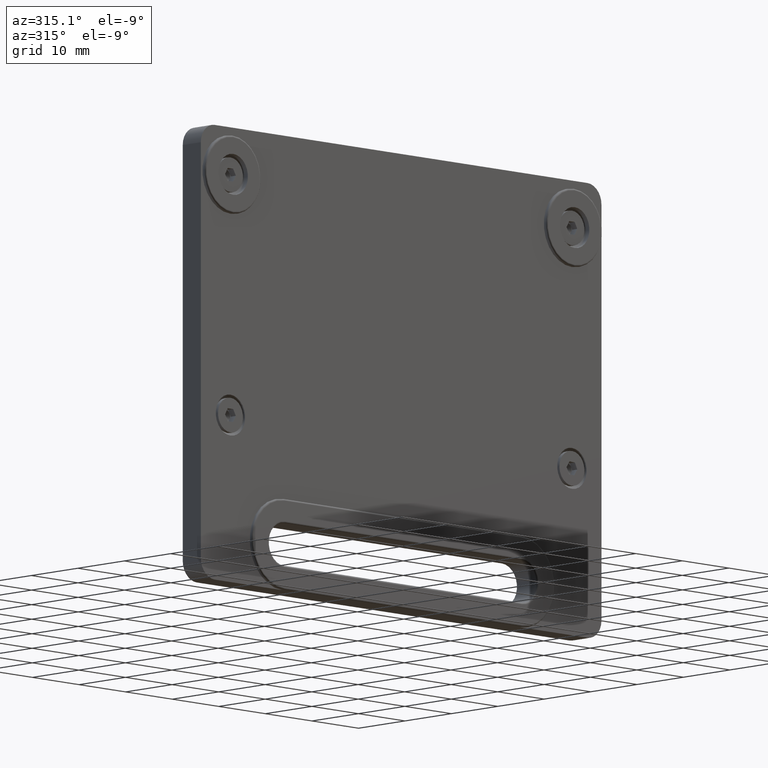
[diagram: clean part render]
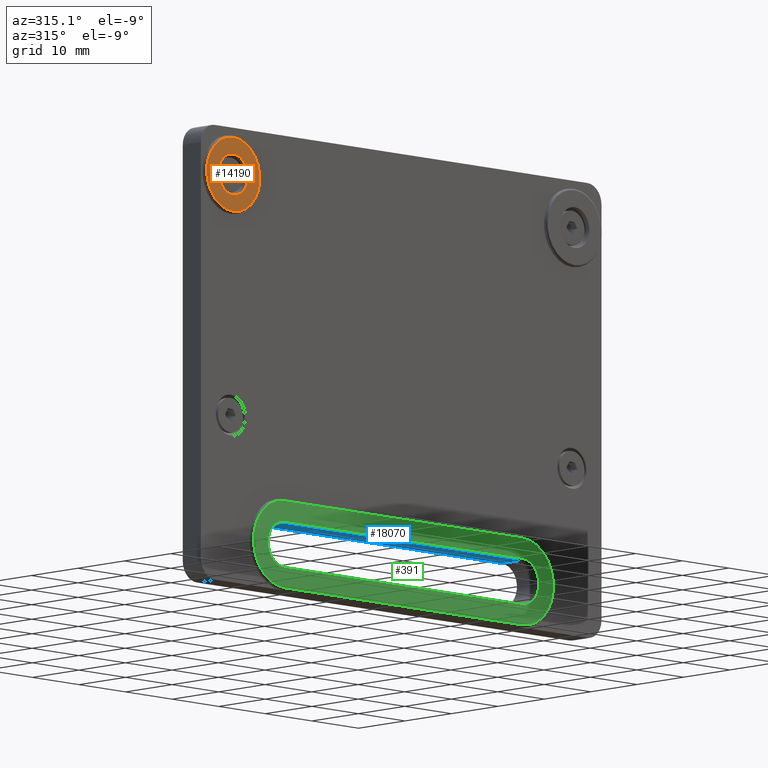
[diagram: same view with three faces highlighted in distinct colors, each labeled with its STEP entity id]
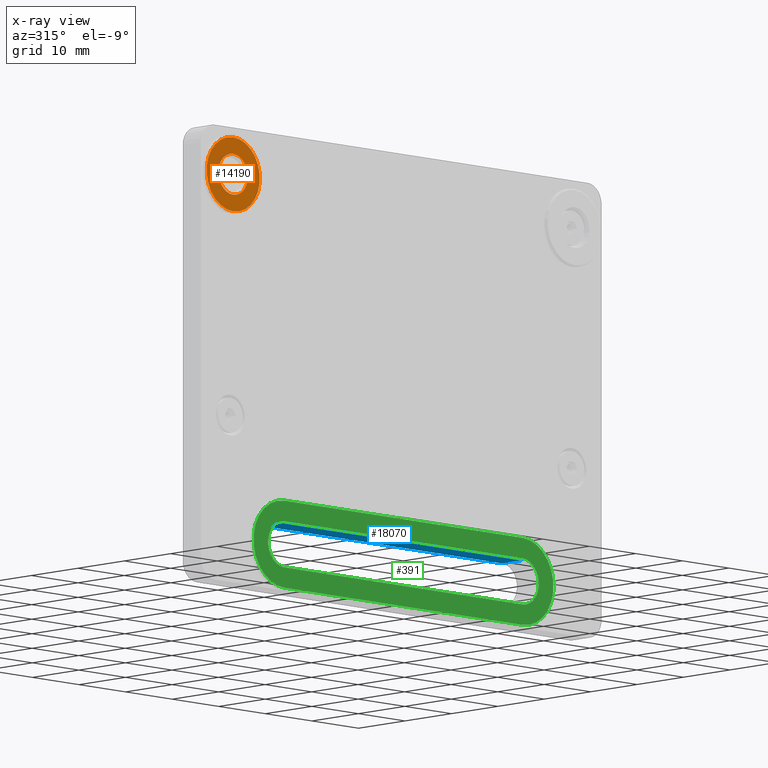
[diagram: x-ray of the same camera — body ghosted, the three highlighted faces saturated]
A machine part, auxiliary view with three faces highlighted in distinct colors.
The next image is the same camera in x-ray (body ghosted, the three faces saturated) — at least one of them is partly hidden behind the body in this view.
Their STEP definitions:

[orange] entity #14190 — the highlighted planar face has unit normal (0, -1, 0).
#2051 = DIRECTION ( 'NONE',  ( -0.000000000000000000, -1.000000000000000000, -0.000000000000000000 ) ) ;
#2268 = ORIENTED_EDGE ( 'NONE', *, *, #14571, .F. ) ;
#2435 = AXIS2_PLACEMENT_3D ( 'NONE', #12490, #12630, #22005 ) ;
#2796 = CARTESIAN_POINT ( 'NONE',  ( -36.65000000000000568, 0.000000000000000000, 18.50000000000000711 ) ) ;
#3853 = CARTESIAN_POINT ( 'NONE',  ( -36.65000000000000568, 0.000000000000000000, 12.80000000000000604 ) ) ;
#3902 = DIRECTION ( 'NONE',  ( -0.000000000000000000, -1.000000000000000000, 0.000000000000000000 ) ) ;
#5031 = EDGE_CURVE ( 'NONE', #13809, #22548, #5815, .T. ) ;
#5815 = CIRCLE ( 'NONE', #20348, 5.700000000000000178 ) ;
#7638 = DIRECTION ( 'NONE',  ( 0.000000000000000000, -1.000000000000000000, 0.000000000000000000 ) ) ;
#7943 = CIRCLE ( 'NONE', #2435, 3.149999999999999911 ) ;
#7984 = PLANE ( 'NONE',  #10405 ) ;
#8359 = ORIENTED_EDGE ( 'NONE', *, *, #9615, .F. ) ;
#9025 = ORIENTED_EDGE ( 'NONE', *, *, #5031, .T. ) ;
#9615 = EDGE_CURVE ( 'NONE', #14023, #17667, #12308, .T. ) ;
#10207 = CARTESIAN_POINT ( 'NONE',  ( -36.65000000000000568, 0.000000000000000000, 15.35000000000000675 ) ) ;
#10405 = AXIS2_PLACEMENT_3D ( 'NONE', #24207, #7638, #21601 ) ;
#12193 = FACE_BOUND ( 'NONE', #22550, .T. ) ;
#12308 = CIRCLE ( 'NONE', #30224, 3.149999999999999911 ) ;
#12490 = CARTESIAN_POINT ( 'NONE',  ( -36.65000000000000568, 0.000000000000000000, 18.50000000000000711 ) ) ;
#12630 = DIRECTION ( 'NONE',  ( -0.000000000000000000, -1.000000000000000000, -0.000000000000000000 ) ) ;
#13321 = CARTESIAN_POINT ( 'NONE',  ( -36.65000000000000568, 0.000000000000000000, 21.65000000000000568 ) ) ;
#13809 = VERTEX_POINT ( 'NONE', #27108 ) ;
#14023 = VERTEX_POINT ( 'NONE', #13321 ) ;
#14190 = ADVANCED_FACE ( 'NONE', ( #26547, #12193 ), #7984, .T. ) ;
#14571 = EDGE_CURVE ( 'NONE', #17667, #14023, #7943, .T. ) ;
#14867 = DIRECTION ( 'NONE',  ( -0.000000000000000000, -1.000000000000000000, 0.000000000000000000 ) ) ;
#17667 = VERTEX_POINT ( 'NONE', #10207 ) ;
#19609 = ORIENTED_EDGE ( 'NONE', *, *, #25107, .T. ) ;
#19650 = CIRCLE ( 'NONE', #30540, 5.700000000000000178 ) ;
#20066 = CARTESIAN_POINT ( 'NONE',  ( -36.65000000000000568, 0.000000000000000000, 18.50000000000000711 ) ) ;
#20348 = AXIS2_PLACEMENT_3D ( 'NONE', #2796, #14867, #28716 ) ;
#21601 = DIRECTION ( 'NONE',  ( 0.000000000000000000, -0.000000000000000000, -1.000000000000000000 ) ) ;
#22005 = DIRECTION ( 'NONE',  ( 0.000000000000000000, 0.000000000000000000, -1.000000000000000000 ) ) ;
#22548 = VERTEX_POINT ( 'NONE', #3853 ) ;
#22550 = EDGE_LOOP ( 'NONE', ( #2268, #8359 ) ) ;
#23473 = CARTESIAN_POINT ( 'NONE',  ( -36.65000000000000568, 0.000000000000000000, 18.50000000000000711 ) ) ;
#23629 = DIRECTION ( 'NONE',  ( 0.000000000000000000, 0.000000000000000000, -1.000000000000000000 ) ) ;
#24207 = CARTESIAN_POINT ( 'NONE',  ( -39.99999999999999289, 0.000000000000000000, -41.20000000000000284 ) ) ;
#24292 = EDGE_LOOP ( 'NONE', ( #19609, #9025 ) ) ;
#25107 = EDGE_CURVE ( 'NONE', #22548, #13809, #19650, .T. ) ;
#26547 = FACE_OUTER_BOUND ( 'NONE', #24292, .T. ) ;
#27108 = CARTESIAN_POINT ( 'NONE',  ( -36.65000000000000568, 0.000000000000000000, 24.20000000000000639 ) ) ;
#28716 = DIRECTION ( 'NONE',  ( 0.000000000000000000, 0.000000000000000000, -1.000000000000000000 ) ) ;
#29512 = DIRECTION ( 'NONE',  ( 0.000000000000000000, 0.000000000000000000, -1.000000000000000000 ) ) ;
#30224 = AXIS2_PLACEMENT_3D ( 'NONE', #23473, #2051, #23629 ) ;
#30540 = AXIS2_PLACEMENT_3D ( 'NONE', #20066, #3902, #29512 ) ;

[blue] entity #18070 — the highlighted planar face has unit normal (0, 0, -1).
#117 = VECTOR ( 'NONE', #14119, 1000.000000000000000 ) ;
#351 = CARTESIAN_POINT ( 'NONE',  ( -25.50000000000000000, 4.500000000000000000, -33.94999999999999574 ) ) ;
#2870 = CARTESIAN_POINT ( 'NONE',  ( -25.50000000000000000, 4.500000000000000000, -33.94999999999999574 ) ) ;
#3283 = FACE_OUTER_BOUND ( 'NONE', #9567, .T. ) ;
#3358 = ORIENTED_EDGE ( 'NONE', *, *, #23116, .F. ) ;
#3506 = CARTESIAN_POINT ( 'NONE',  ( -25.50000000000000000, 0.4000000000000001887, -33.94999999999999574 ) ) ;
#4936 = LINE ( 'NONE', #351, #29350 ) ;
#6461 = ORIENTED_EDGE ( 'NONE', *, *, #21090, .T. ) ;
#9567 = EDGE_LOOP ( 'NONE', ( #22229, #12333, #3358, #6461 ) ) ;
#10023 = PLANE ( 'NONE',  #26927 ) ;
#10255 = VERTEX_POINT ( 'NONE', #2870 ) ;
#10533 = VERTEX_POINT ( 'NONE', #23171 ) ;
#12333 = ORIENTED_EDGE ( 'NONE', *, *, #14963, .T. ) ;
#12553 = CARTESIAN_POINT ( 'NONE',  ( -25.50000000000000000, 4.500000000000000000, -33.94999999999999574 ) ) ;
#13053 = DIRECTION ( 'NONE',  ( -1.000000000000000000, 0.000000000000000000, 0.000000000000000000 ) ) ;
#14119 = DIRECTION ( 'NONE',  ( -0.000000000000000000, -1.000000000000000000, -0.000000000000000000 ) ) ;
#14963 = EDGE_CURVE ( 'NONE', #20399, #20459, #22430, .T. ) ;
#16104 = CARTESIAN_POINT ( 'NONE',  ( -25.50000000000000000, 0.4000000000000001887, -33.94999999999999574 ) ) ;
#17353 = DIRECTION ( 'NONE',  ( -0.000000000000000000, -1.000000000000000000, -0.000000000000000000 ) ) ;
#17427 = DIRECTION ( 'NONE',  ( -1.000000000000000000, 0.000000000000000000, -0.000000000000000000 ) ) ;
#18070 = ADVANCED_FACE ( 'NONE', ( #3283 ), #10023, .T. ) ;
#18975 = CARTESIAN_POINT ( 'NONE',  ( 25.50000000000000000, 4.500000000000000000, -33.94999999999998863 ) ) ;
#20221 = EDGE_CURVE ( 'NONE', #10533, #20399, #22300, .T. ) ;
#20399 = VERTEX_POINT ( 'NONE', #27744 ) ;
#20459 = VERTEX_POINT ( 'NONE', #16104 ) ;
#21090 = EDGE_CURVE ( 'NONE', #10255, #10533, #4936, .T. ) ;
#22229 = ORIENTED_EDGE ( 'NONE', *, *, #20221, .T. ) ;
#22300 = LINE ( 'NONE', #18975, #25303 ) ;
#22430 = LINE ( 'NONE', #3506, #29384 ) ;
#23116 = EDGE_CURVE ( 'NONE', #10255, #20459, #25964, .T. ) ;
#23171 = CARTESIAN_POINT ( 'NONE',  ( 25.50000000000000000, 4.500000000000000000, -33.94999999999998863 ) ) ;
#23499 = CARTESIAN_POINT ( 'NONE',  ( -25.50000000000000000, 4.500000000000000000, -33.94999999999999574 ) ) ;
#25303 = VECTOR ( 'NONE', #17353, 1000.000000000000000 ) ;
#25964 = LINE ( 'NONE', #23499, #117 ) ;
#26927 = AXIS2_PLACEMENT_3D ( 'NONE', #12553, #29048, #17427 ) ;
#27744 = CARTESIAN_POINT ( 'NONE',  ( 25.50000000000000000, 0.4000000000000001887, -33.94999999999998863 ) ) ;
#28945 = DIRECTION ( 'NONE',  ( 1.000000000000000000, 0.000000000000000000, 0.000000000000000000 ) ) ;
#29048 = DIRECTION ( 'NONE',  ( 0.000000000000000000, 0.000000000000000000, -1.000000000000000000 ) ) ;
#29350 = VECTOR ( 'NONE', #28945, 1000.000000000000000 ) ;
#29384 = VECTOR ( 'NONE', #13053, 1000.000000000000000 ) ;

[green] entity #391 — the highlighted planar face has unit normal (0, -1, 0).
#22 = EDGE_CURVE ( 'NONE', #3861, #8489, #21159, .T. ) ;
#255 = DIRECTION ( 'NONE',  ( 0.000000000000000000, -0.000000000000000000, -1.000000000000000000 ) ) ;
#391 = ADVANCED_FACE ( 'NONE', ( #12647, #24501 ), #7777, .T. ) ;
#757 = ORIENTED_EDGE ( 'NONE', *, *, #25205, .T. ) ;
#1848 = DIRECTION ( 'NONE',  ( 0.000000000000000000, -1.000000000000000000, 0.000000000000000000 ) ) ;
#3861 = VERTEX_POINT ( 'NONE', #27074 ) ;
#4084 = DIRECTION ( 'NONE',  ( 0.000000000000000000, 0.000000000000000000, -1.000000000000000000 ) ) ;
#4279 = VERTEX_POINT ( 'NONE', #10005 ) ;
#4833 = DIRECTION ( 'NONE',  ( 0.000000000000000000, 0.000000000000000000, -1.000000000000000000 ) ) ;
#4986 = DIRECTION ( 'NONE',  ( -1.000000000000000000, 0.000000000000000000, -2.040851148208008491E-16 ) ) ;
#5771 = CARTESIAN_POINT ( 'NONE',  ( 25.50000000000000000, 0.1000000000000000056, -33.64999999999998437 ) ) ;
#6456 = VECTOR ( 'NONE', #20200, 1000.000000000000000 ) ;
#6898 = EDGE_CURVE ( 'NONE', #4279, #16597, #13514, .T. ) ;
#7777 = PLANE ( 'NONE',  #14857 ) ;
#7779 = ORIENTED_EDGE ( 'NONE', *, *, #27527, .T. ) ;
#8489 = VERTEX_POINT ( 'NONE', #19209 ) ;
#8631 = DIRECTION ( 'NONE',  ( -0.000000000000000000, 1.000000000000000000, -0.000000000000000000 ) ) ;
#9319 = VERTEX_POINT ( 'NONE', #28449 ) ;
#9664 = VERTEX_POINT ( 'NONE', #24369 ) ;
#9674 = CARTESIAN_POINT ( 'NONE',  ( -25.50000000000000000, 0.1000000000000000056, -37.19999999999998863 ) ) ;
#10005 = CARTESIAN_POINT ( 'NONE',  ( -25.50000000000000000, 0.1000000000000000056, -40.74999999999997868 ) ) ;
#10132 = CARTESIAN_POINT ( 'NONE',  ( -25.50000000000000000, 0.09999999999999999167, -37.19999999999998153 ) ) ;
#10204 = CIRCLE ( 'NONE', #29643, 6.699999999999997513 ) ;
#10273 = DIRECTION ( 'NONE',  ( -0.000000000000000000, 1.000000000000000000, -0.000000000000000000 ) ) ;
#10433 = VERTEX_POINT ( 'NONE', #19020 ) ;
#10534 = CIRCLE ( 'NONE', #11046, 6.699999999999997513 ) ;
#10924 = LINE ( 'NONE', #23097, #26828 ) ;
#10973 = DIRECTION ( 'NONE',  ( 0.000000000000000000, 0.000000000000000000, -1.000000000000000000 ) ) ;
#11046 = AXIS2_PLACEMENT_3D ( 'NONE', #30752, #1848, #4833 ) ;
#11827 = ORIENTED_EDGE ( 'NONE', *, *, #14390, .T. ) ;
#12382 = CIRCLE ( 'NONE', #28293, 3.549999999999997602 ) ;
#12647 = FACE_BOUND ( 'NONE', #16989, .T. ) ;
#12815 = CARTESIAN_POINT ( 'NONE',  ( -25.50000000000000000, 0.1000000000000000056, -33.64999999999999147 ) ) ;
#13514 = CIRCLE ( 'NONE', #30955, 3.549999999999997602 ) ;
#14390 = EDGE_CURVE ( 'NONE', #16597, #16047, #15809, .T. ) ;
#14541 = LINE ( 'NONE', #23903, #27175 ) ;
#14857 = AXIS2_PLACEMENT_3D ( 'NONE', #9674, #19882, #255 ) ;
#15155 = DIRECTION ( 'NONE',  ( 0.000000000000000000, 0.000000000000000000, -1.000000000000000000 ) ) ;
#15809 = LINE ( 'NONE', #12815, #6456 ) ;
#15851 = DIRECTION ( 'NONE',  ( 0.000000000000000000, -1.000000000000000000, 0.000000000000000000 ) ) ;
#16047 = VERTEX_POINT ( 'NONE', #5771 ) ;
#16597 = VERTEX_POINT ( 'NONE', #28975 ) ;
#16989 = EDGE_LOOP ( 'NONE', ( #26603, #11827, #27740, #24040 ) ) ;
#18043 = CARTESIAN_POINT ( 'NONE',  ( -25.50000000000000000, 0.09999999999999999167, -37.19999999999998863 ) ) ;
#19020 = CARTESIAN_POINT ( 'NONE',  ( -25.50000000000000000, 0.1000000000000000056, -30.49999999999999289 ) ) ;
#19209 = CARTESIAN_POINT ( 'NONE',  ( 25.50000000000000000, 0.1000000000000000056, -43.89999999999999858 ) ) ;
#19882 = DIRECTION ( 'NONE',  ( 0.000000000000000000, -1.000000000000000000, 0.000000000000000000 ) ) ;
#20200 = DIRECTION ( 'NONE',  ( 1.000000000000000000, -0.000000000000000000, -0.000000000000000000 ) ) ;
#20489 = DIRECTION ( 'NONE',  ( -1.000000000000000000, -0.000000000000000000, -0.000000000000000000 ) ) ;
#20730 = EDGE_LOOP ( 'NONE', ( #757, #7779, #29352, #22814 ) ) ;
#21159 = LINE ( 'NONE', #30642, #24412 ) ;
#21529 = EDGE_CURVE ( 'NONE', #9319, #4279, #10924, .T. ) ;
#22814 = ORIENTED_EDGE ( 'NONE', *, *, #22, .T. ) ;
#23097 = CARTESIAN_POINT ( 'NONE',  ( -25.50000000000000000, 0.1000000000000000056, -40.74999999999998579 ) ) ;
#23903 = CARTESIAN_POINT ( 'NONE',  ( -25.50000000000000000, 0.09999999999999999167, -30.49999999999999289 ) ) ;
#23944 = DIRECTION ( 'NONE',  ( 1.000000000000000000, 0.000000000000000000, -0.000000000000000000 ) ) ;
#24040 = ORIENTED_EDGE ( 'NONE', *, *, #21529, .T. ) ;
#24124 = EDGE_CURVE ( 'NONE', #10433, #3861, #10204, .T. ) ;
#24369 = CARTESIAN_POINT ( 'NONE',  ( 25.50000000000000000, 0.1000000000000000056, -30.49999999999998224 ) ) ;
#24412 = VECTOR ( 'NONE', #23944, 1000.000000000000000 ) ;
#24501 = FACE_OUTER_BOUND ( 'NONE', #20730, .T. ) ;
#25172 = CARTESIAN_POINT ( 'NONE',  ( 25.50000000000000000, 0.09999999999999999167, -37.19999999999998153 ) ) ;
#25205 = EDGE_CURVE ( 'NONE', #8489, #9664, #10534, .T. ) ;
#26603 = ORIENTED_EDGE ( 'NONE', *, *, #6898, .T. ) ;
#26828 = VECTOR ( 'NONE', #20489, 1000.000000000000000 ) ;
#27074 = CARTESIAN_POINT ( 'NONE',  ( -25.50000000000000000, 0.1000000000000000056, -43.89999999999998437 ) ) ;
#27175 = VECTOR ( 'NONE', #4986, 1000.000000000000000 ) ;
#27527 = EDGE_CURVE ( 'NONE', #9664, #10433, #14541, .T. ) ;
#27740 = ORIENTED_EDGE ( 'NONE', *, *, #30421, .T. ) ;
#28293 = AXIS2_PLACEMENT_3D ( 'NONE', #25172, #8631, #10973 ) ;
#28449 = CARTESIAN_POINT ( 'NONE',  ( 25.50000000000000000, 0.1000000000000000056, -40.74999999999998579 ) ) ;
#28975 = CARTESIAN_POINT ( 'NONE',  ( -25.50000000000000000, 0.1000000000000000056, -33.64999999999998437 ) ) ;
#29352 = ORIENTED_EDGE ( 'NONE', *, *, #24124, .T. ) ;
#29643 = AXIS2_PLACEMENT_3D ( 'NONE', #18043, #15851, #4084 ) ;
#30421 = EDGE_CURVE ( 'NONE', #16047, #9319, #12382, .T. ) ;
#30642 = CARTESIAN_POINT ( 'NONE',  ( 25.50000000000000000, 0.09999999999999999167, -43.89999999999999858 ) ) ;
#30752 = CARTESIAN_POINT ( 'NONE',  ( 25.50000000000000000, 0.09999999999999999167, -37.19999999999998153 ) ) ;
#30955 = AXIS2_PLACEMENT_3D ( 'NONE', #10132, #10273, #15155 ) ;